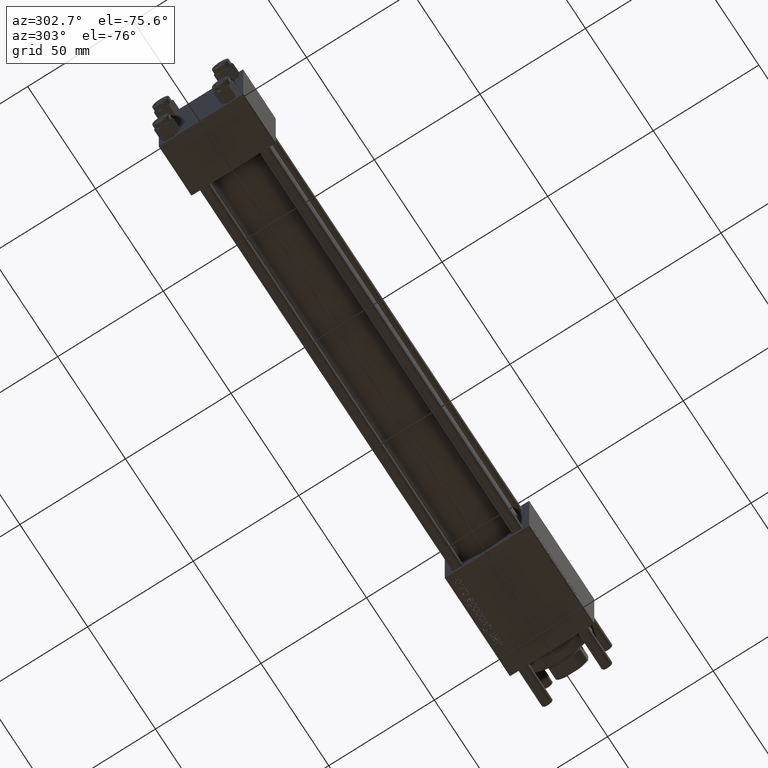
[diagram: clean part render]
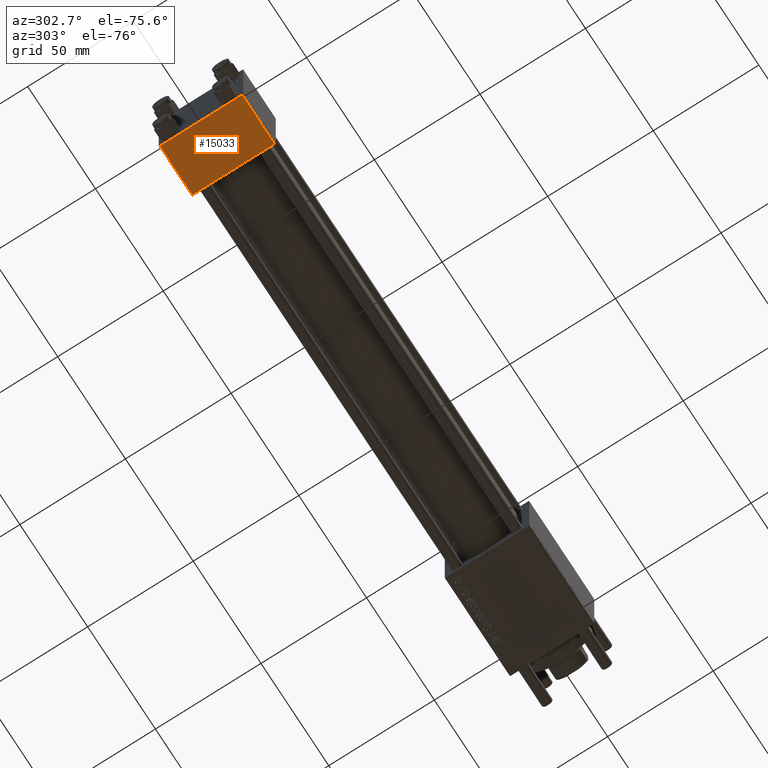
[diagram: same view with one face highlighted and labeled with its STEP entity id]
A machine part, auxiliary view. The second image highlights one B-rep face of the part: STEP entity #15033.
In plain terms, the highlighted planar face has unit normal (0, -0, -1).
Its self-contained STEP definition (entity closure, byte-faithful):
#4459 = CARTESIAN_POINT ( 'NONE',  ( 24.00000000000000000, 19.50000000000000711, -20.00000000000000711 ) ) ;
#6732 = VECTOR ( 'NONE', #15712, 1000.000000000000000 ) ;
#7776 = LINE ( 'NONE', #55360, #11142 ) ;
#8291 = ORIENTED_EDGE ( 'NONE', *, *, #49320, .F. ) ;
#10073 = DIRECTION ( 'NONE',  ( 0.000000000000000000, 1.000000000000000000, -1.734723475976806848E-16 ) ) ;
#10575 = LINE ( 'NONE', #55278, #6732 ) ;
#11142 = VECTOR ( 'NONE', #47870, 1000.000000000000000 ) ;
#11229 = VECTOR ( 'NONE', #17920, 1000.000000000000000 ) ;
#13368 = CARTESIAN_POINT ( 'NONE',  ( 0.000000000000000000, 20.00000000000000000, -20.00000000000000711 ) ) ;
#13808 = PLANE ( 'NONE',  #49483 ) ;
#15033 = ADVANCED_FACE ( 'NONE', ( #30985 ), #13808, .T. ) ;
#15384 = ORIENTED_EDGE ( 'NONE', *, *, #46536, .T. ) ;
#15712 = DIRECTION ( 'NONE',  ( 0.000000000000000000, -1.000000000000000000, 1.734723475976807094E-16 ) ) ;
#17920 = DIRECTION ( 'NONE',  ( 1.000000000000000000, 0.000000000000000000, 0.000000000000000000 ) ) ;
#18100 = EDGE_CURVE ( 'NONE', #45521, #21463, #7776, .T. ) ;
#18705 = VECTOR ( 'NONE', #48329, 1000.000000000000000 ) ;
#21463 = VERTEX_POINT ( 'NONE', #51719 ) ;
#23440 = ORIENTED_EDGE ( 'NONE', *, *, #44459, .T. ) ;
#25567 = CARTESIAN_POINT ( 'NONE',  ( 24.00000000000000000, 19.50000000000000711, -20.00000000000000711 ) ) ;
#30985 = FACE_OUTER_BOUND ( 'NONE', #37408, .T. ) ;
#35868 = CARTESIAN_POINT ( 'NONE',  ( 24.00000000000000000, 20.00000000000000000, -20.00000000000000711 ) ) ;
#37408 = EDGE_LOOP ( 'NONE', ( #8291, #23440, #15384, #45957 ) ) ;
#37459 = VERTEX_POINT ( 'NONE', #25567 ) ;
#40340 = CARTESIAN_POINT ( 'NONE',  ( 24.00000000000000000, -19.50000000000000711, -20.00000000000000000 ) ) ;
#43713 = LINE ( 'NONE', #4459, #11229 ) ;
#44459 = EDGE_CURVE ( 'NONE', #49051, #37459, #43713, .T. ) ;
#45521 = VERTEX_POINT ( 'NONE', #40340 ) ;
#45957 = ORIENTED_EDGE ( 'NONE', *, *, #18100, .T. ) ;
#46536 = EDGE_CURVE ( 'NONE', #37459, #45521, #10575, .T. ) ;
#47870 = DIRECTION ( 'NONE',  ( -1.000000000000000000, 0.000000000000000000, 0.000000000000000000 ) ) ;
#48329 = DIRECTION ( 'NONE',  ( 0.000000000000000000, -1.000000000000000000, 1.734723475976807094E-16 ) ) ;
#49051 = VERTEX_POINT ( 'NONE', #50077 ) ;
#49320 = EDGE_CURVE ( 'NONE', #49051, #21463, #52644, .T. ) ;
#49483 = AXIS2_PLACEMENT_3D ( 'NONE', #35868, #53929, #10073 ) ;
#50077 = CARTESIAN_POINT ( 'NONE',  ( 0.000000000000000000, 19.50000000000000711, -20.00000000000000711 ) ) ;
#51719 = CARTESIAN_POINT ( 'NONE',  ( 0.000000000000000000, -19.50000000000000711, -20.00000000000000000 ) ) ;
#52644 = LINE ( 'NONE', #13368, #18705 ) ;
#53929 = DIRECTION ( 'NONE',  ( 0.000000000000000000, -1.734723475976806848E-16, -1.000000000000000000 ) ) ;
#55278 = CARTESIAN_POINT ( 'NONE',  ( 24.00000000000000000, 20.00000000000000000, -20.00000000000000711 ) ) ;
#55360 = CARTESIAN_POINT ( 'NONE',  ( 0.000000000000000000, -19.50000000000000711, -20.00000000000000000 ) ) ;